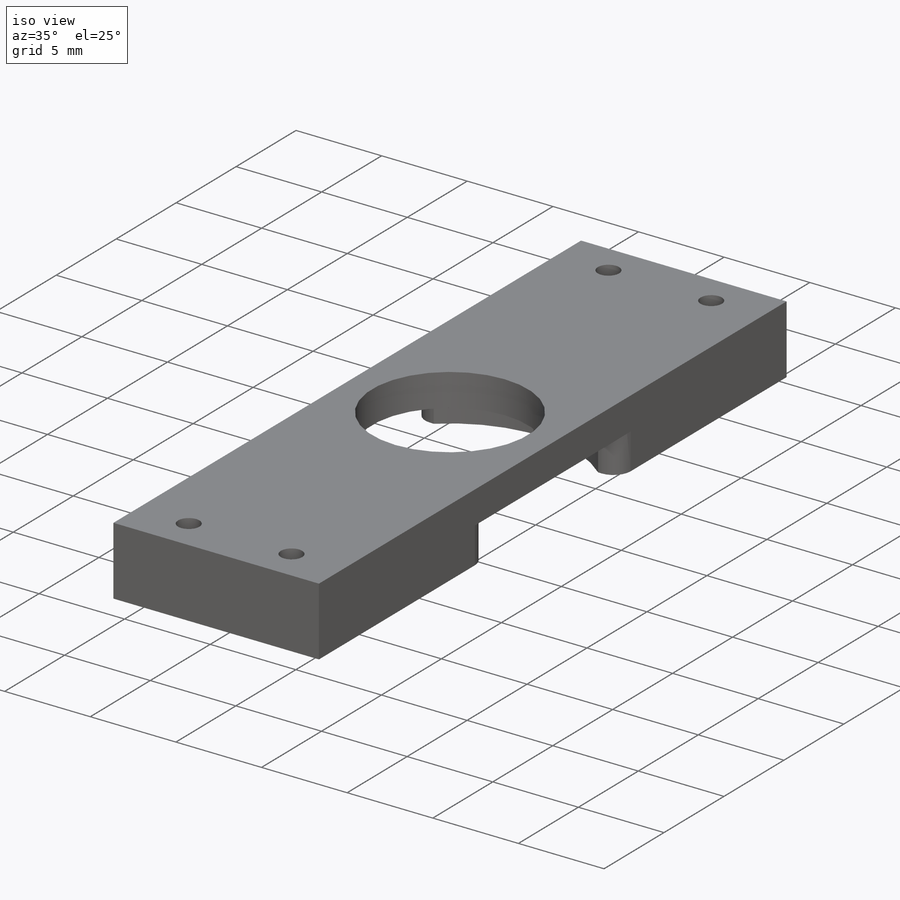
[diagram: iso view]
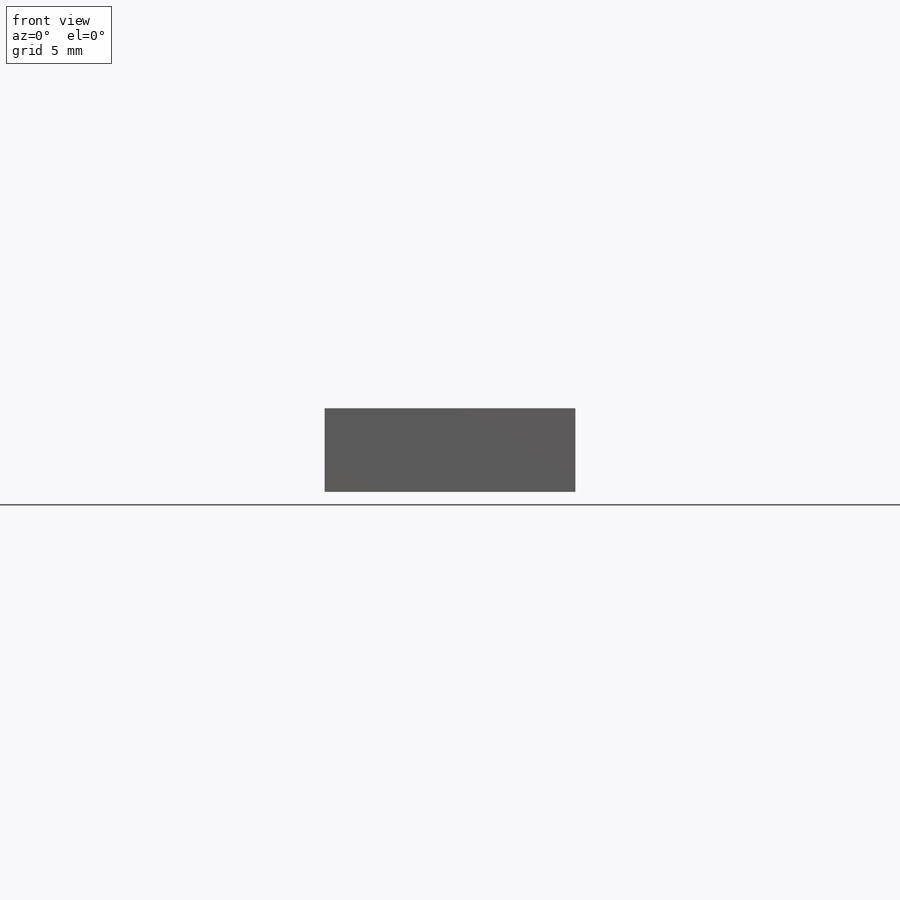
[diagram: front view]
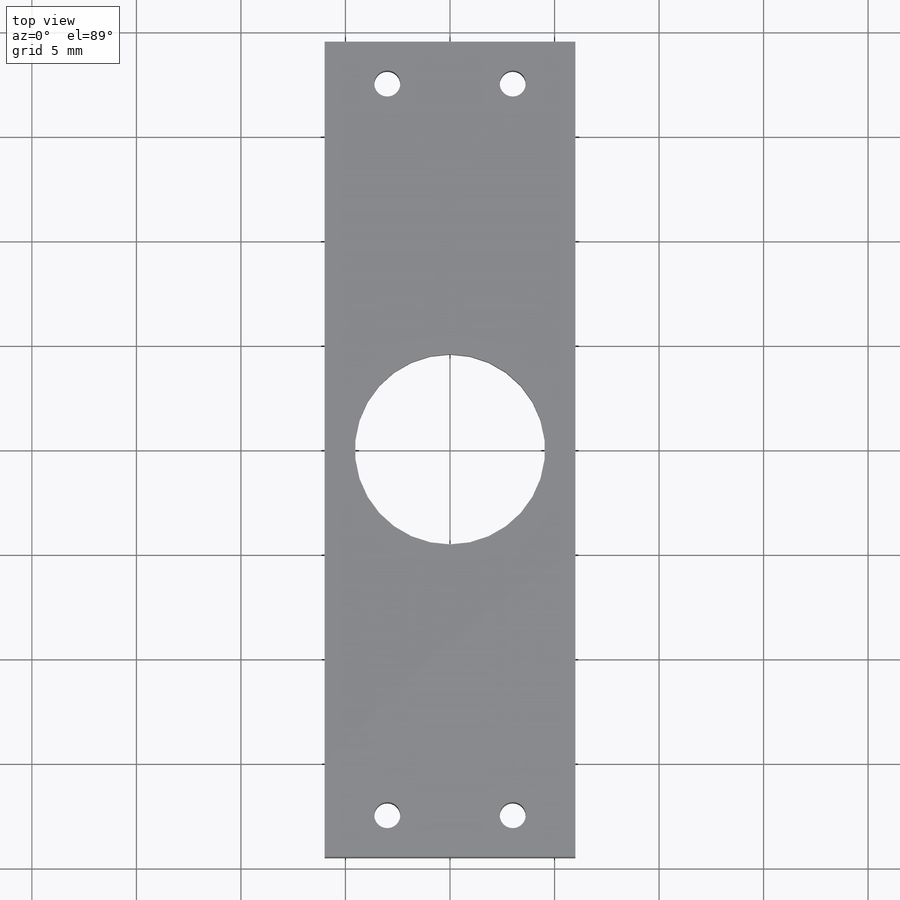
[diagram: top view]
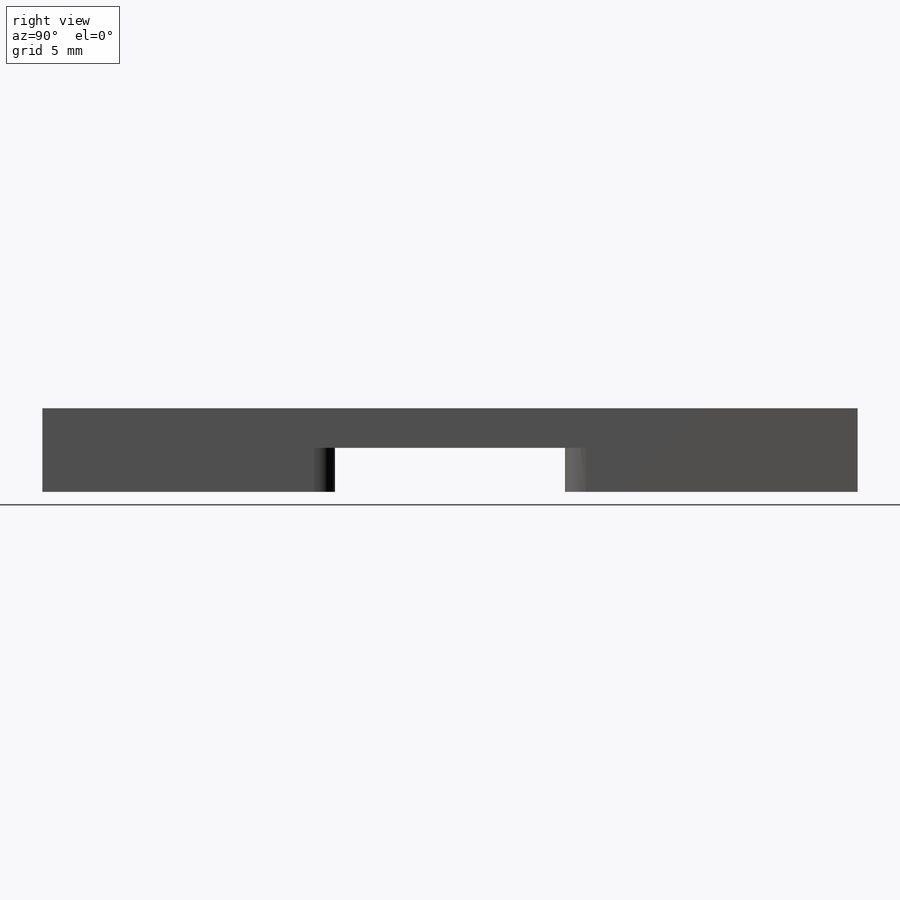
[diagram: right view]
SOLIDWORKS PART (.sldprt)
format: sldprt  version: not decoded by parser v0  size: 233,984 bytes
history: native  units: mm
features: sketch x6, cut_revolve x2, material x1, extrude x1, cut_extrude x1, hole x1, fillet x1 (+12 scaffold rows collapsed)
feature tree (25):
  scaffold x12  (default folders/planes/origin — collapsed)
  material  "ABS"
  sketch  "Sketch1"  dims[D1=4.0mm D2=12.0mm]
  extrude  "Boss-Extrude1"  Depth=19.5mm
  sketch  "Sketch2"  dims[D1=9.1mm]
  cut_revolve  "Cut-Revolve1"  Angle=360deg
  sketch  "Sketch6"  dims[D1=14.6mm D2=0.1mm]
  cut_revolve  "Cut-Revolve2"  Angle=360deg
  sketch  "Sketch7"  dims[D1=11.0mm]
  cut_extrude  "Cut-Extrude2"  Depth=7mm
  hole  "Tap Drill for M1.6 Tap1"  Diameter=1.25mm Depth=8mm
  sketch  "Sketch9"  dims[D1=35.0mm D2=6.0mm]
  sketch  "Sketch8"  dims[hole-wizard template sketch: 47 standard entries collapsed; hole parameters kept: c15.Hole Depth=8.0mm c15.D3=~14.816244mm c15.Drill Angle=118.0deg]
  fillet  "Fillet1"  Radius=1mm
decode coverage: 12 of 12 modeling features carry decoded parameters
note: ~ marks probable driven/reference dimensions
note: suppression state not decoded; provenance and decode notes live in map.json
